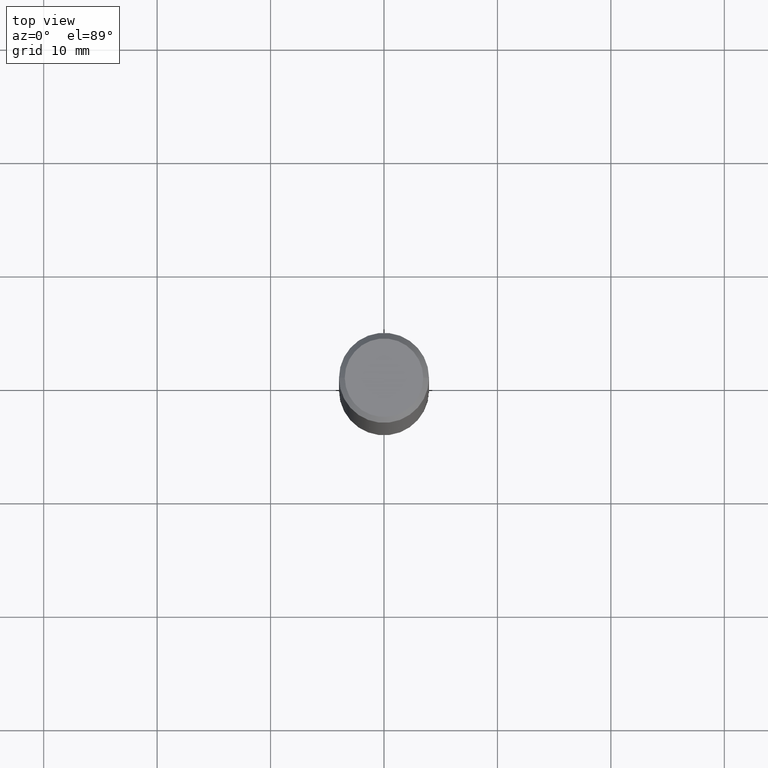
[diagram: clean part render]
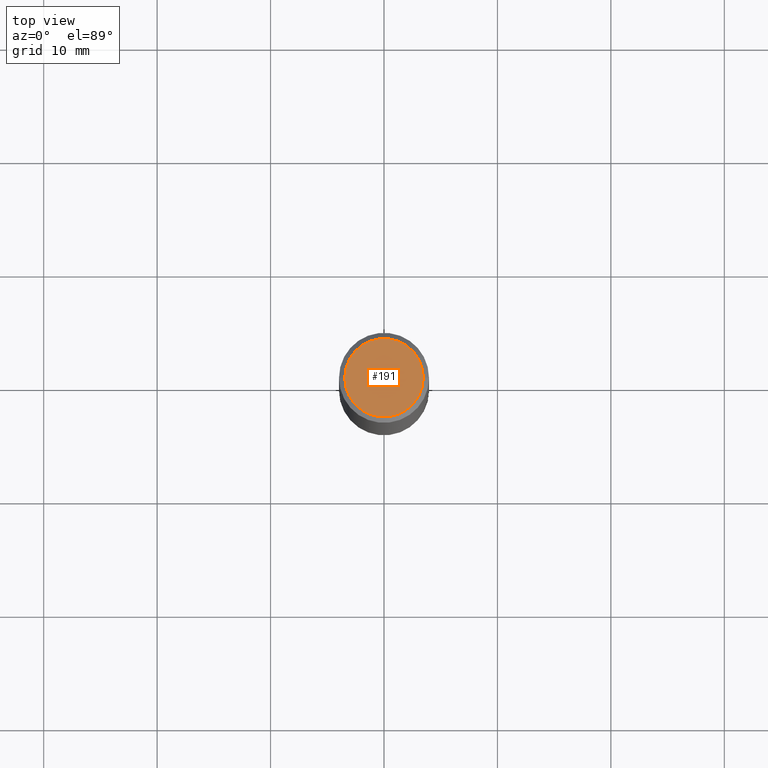
[diagram: same view with one face highlighted and labeled with its STEP entity id]
A machine part, top view. The second image highlights one B-rep face of the part: STEP entity #191.
In plain terms, the highlighted planar face has unit normal (0, -0, -1).
Its self-contained STEP definition (entity closure, byte-faithful):
#12 = CIRCLE ( 'NONE', #102, 0.1362499999999998435 ) ;
#34 = AXIS2_PLACEMENT_3D ( 'NONE', #228, #336, #201 ) ;
#68 = VERTEX_POINT ( 'NONE', #230 ) ;
#98 = FACE_OUTER_BOUND ( 'NONE', #204, .T. ) ;
#102 = AXIS2_PLACEMENT_3D ( 'NONE', #279, #229, #239 ) ;
#146 = CARTESIAN_POINT ( 'NONE',  ( -1.043851414335219820E-46, 1.490343170380447200E-32, 4.268512490100411279E-18 ) ) ;
#164 = EDGE_CURVE ( 'NONE', #352, #68, #274, .T. ) ;
#174 = EDGE_CURVE ( 'NONE', #68, #352, #12, .T. ) ;
#189 = DIRECTION ( 'NONE',  ( -2.445468806185136597E-29, 3.491481338843145583E-15, 1.000000000000000000 ) ) ;
#191 = ADVANCED_FACE ( 'NONE', ( #98 ), #286, .F. ) ;
#201 = DIRECTION ( 'NONE',  ( -1.000000000000000000, 6.982962677686265922E-15, -4.876176775795935793E-29 ) ) ;
#204 = EDGE_LOOP ( 'NONE', ( #350, #290 ) ) ;
#228 = CARTESIAN_POINT ( 'NONE',  ( 9.514286648347525771E-16, 0.1362499999999998435, -4.735800761723278502E-16 ) ) ;
#229 = DIRECTION ( 'NONE',  ( -2.445468806185136597E-29, 3.491481338843145583E-15, 1.000000000000000000 ) ) ;
#230 = CARTESIAN_POINT ( 'NONE',  ( -0.1362499999999998435, 9.863434782231838318E-16, 4.268512490093635087E-18 ) ) ;
#239 = DIRECTION ( 'NONE',  ( 1.000000000000000000, -6.982962677686266711E-15, 4.876388394912424373E-29 ) ) ;
#240 = CARTESIAN_POINT ( 'NONE',  ( 0.1362499999999998435, -1.038262645562516941E-15, 4.268512490107368508E-18 ) ) ;
#274 = CIRCLE ( 'NONE', #313, 0.1362499999999998435 ) ;
#279 = CARTESIAN_POINT ( 'NONE',  ( -1.043851414335219820E-46, 1.490343170380447200E-32, 4.268512490100411279E-18 ) ) ;
#286 = PLANE ( 'NONE',  #34 ) ;
#290 = ORIENTED_EDGE ( 'NONE', *, *, #164, .T. ) ;
#312 = DIRECTION ( 'NONE',  ( 1.000000000000000000, -6.982962677686266711E-15, 4.876388394912424373E-29 ) ) ;
#313 = AXIS2_PLACEMENT_3D ( 'NONE', #146, #189, #312 ) ;
#336 = DIRECTION ( 'NONE',  ( 2.438088387897960049E-29, -3.491481338843145188E-15, -1.000000000000000000 ) ) ;
#350 = ORIENTED_EDGE ( 'NONE', *, *, #174, .T. ) ;
#352 = VERTEX_POINT ( 'NONE', #240 ) ;